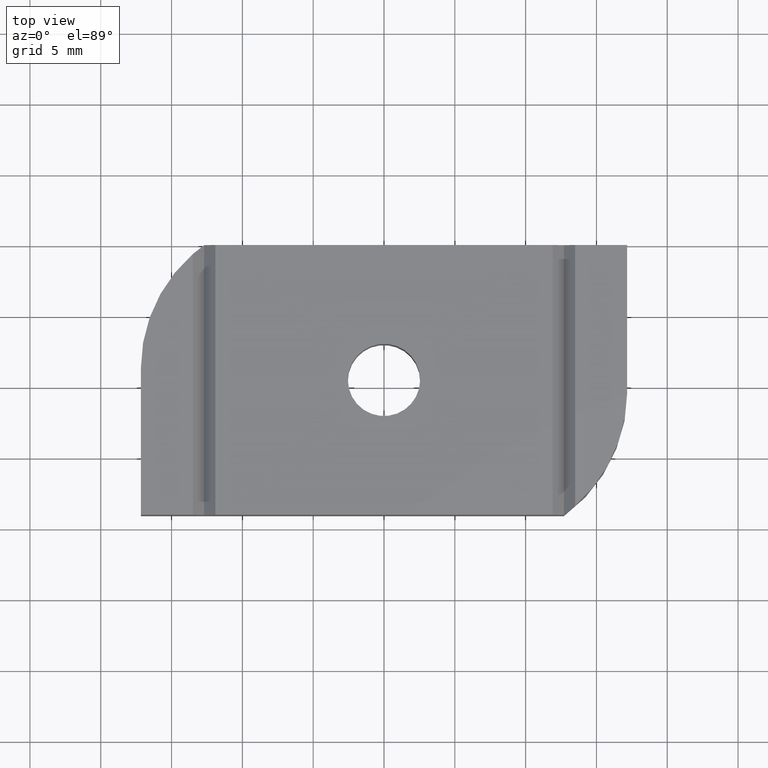
[diagram: clean part render]
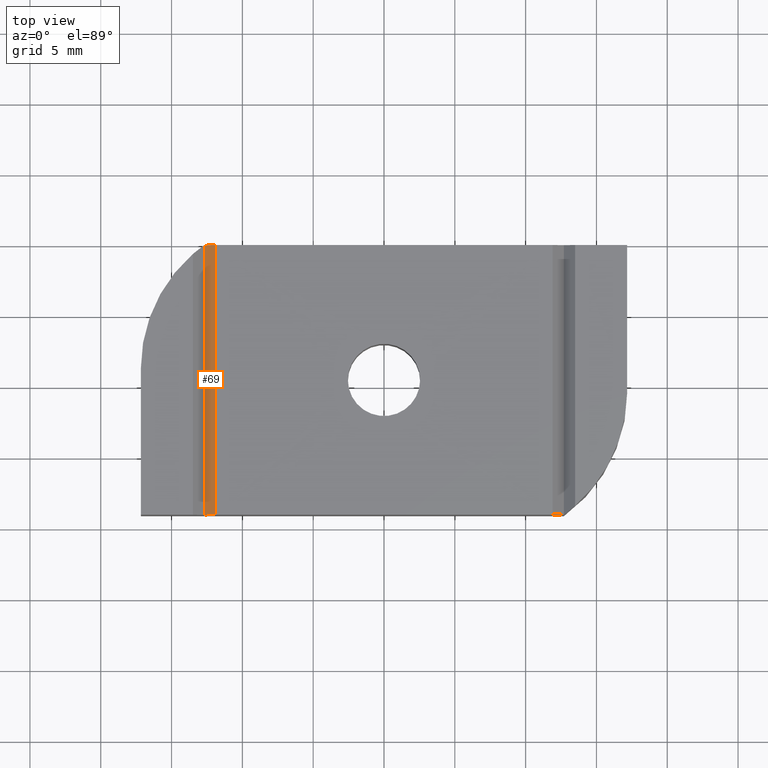
[diagram: same view with one face highlighted and labeled with its STEP entity id]
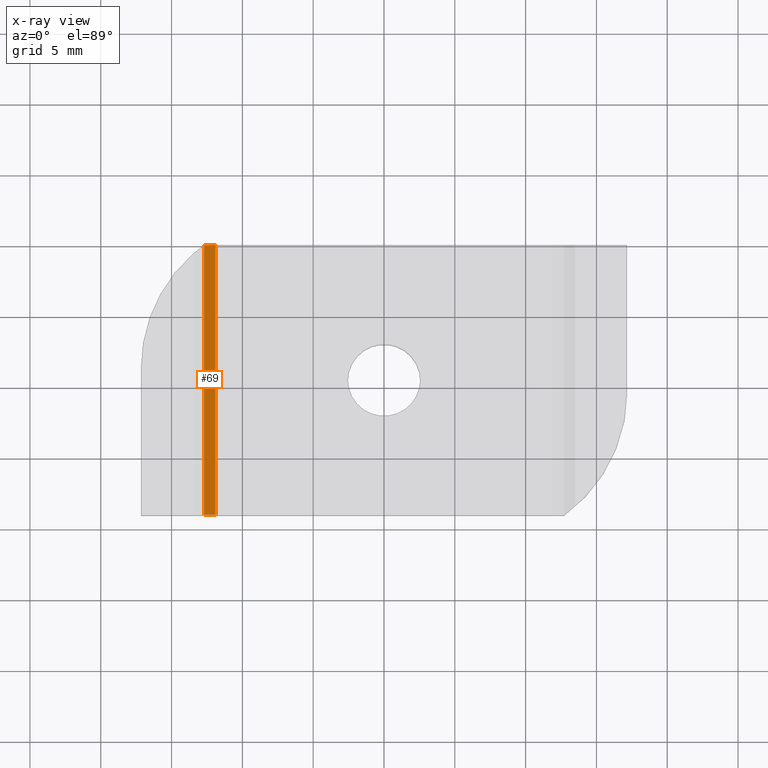
[diagram: x-ray of the same camera — body ghosted, the highlighted face saturated]
A machine part, top view. The second image highlights one B-rep face of the part: STEP entity #69.
The next image is the same camera in x-ray: the body ghosted, the highlighted face saturated — about 0% of this face is hidden behind the body in this view.
In plain terms, the highlighted planar face has unit normal (0.7071, 0, -0.7071).
Its self-contained STEP definition (entity closure, byte-faithful):
#42 = ORIENTED_EDGE ( 'NONE', *, *, #89, .T. ) ;
#69 = ADVANCED_FACE ( 'NONE', ( #1165 ), #2589, .F. ) ;
#89 = EDGE_CURVE ( 'NONE', #2580, #2551, #250, .T. ) ;
#112 = AXIS2_PLACEMENT_3D ( 'NONE', #2567, #2566, #2553 ) ;
#133 = EDGE_CURVE ( 'NONE', #2601, #2580, #2004, .T. ) ;
#213 = LINE ( 'NONE', #1102, #214 ) ;
#214 = VECTOR ( 'NONE', #1103, 39.37007874015748900 ) ;
#225 = LINE ( 'NONE', #1120, #226 ) ;
#226 = VECTOR ( 'NONE', #1121, 39.37007874015748100 ) ;
#250 = LINE ( 'NONE', #675, #254 ) ;
#254 = VECTOR ( 'NONE', #676, 39.37007874015748900 ) ;
#675 = CARTESIAN_POINT ( 'NONE',  ( -0.5000000000000000000, -0.3750000000000000600, 0.08774999999999996700 ) ) ;
#676 = DIRECTION ( 'NONE',  ( 0.7071067811865476800, 0.0000000000000000000, 0.7071067811865472400 ) ) ;
#1029 = CARTESIAN_POINT ( 'NONE',  ( -0.5000000000000000000, 0.3750000000000000600, 0.08774999999999996700 ) ) ;
#1034 = DIRECTION ( 'NONE',  ( -0.0000000000000000000, -1.000000000000000000, -0.0000000000000000000 ) ) ;
#1059 = CARTESIAN_POINT ( 'NONE',  ( -0.4687499999999999400, -0.3750000000000000600, 0.1189999999999999900 ) ) ;
#1070 = CARTESIAN_POINT ( 'NONE',  ( -0.4687499999999999400, 0.3750000000000000600, 0.1189999999999999900 ) ) ;
#1079 = CARTESIAN_POINT ( 'NONE',  ( -0.5000000000000000000, -0.3750000000000000600, 0.08774999999999996700 ) ) ;
#1094 = CARTESIAN_POINT ( 'NONE',  ( -0.5000000000000000000, 0.3750000000000000600, 0.08774999999999996700 ) ) ;
#1102 = CARTESIAN_POINT ( 'NONE',  ( -0.5000000000000000000, 0.3750000000000000600, 0.08774999999999996700 ) ) ;
#1103 = DIRECTION ( 'NONE',  ( 0.7071067811865476800, 0.0000000000000000000, 0.7071067811865472400 ) ) ;
#1120 = CARTESIAN_POINT ( 'NONE',  ( -0.4687499999999999400, 0.3750000000000000600, 0.1189999999999999900 ) ) ;
#1121 = DIRECTION ( 'NONE',  ( -0.0000000000000000000, -1.000000000000000000, -0.0000000000000000000 ) ) ;
#1165 = FACE_OUTER_BOUND ( 'NONE', #2042, .T. ) ;
#2004 = LINE ( 'NONE', #1029, #2011 ) ;
#2011 = VECTOR ( 'NONE', #1034, 39.37007874015748100 ) ;
#2042 = EDGE_LOOP ( 'NONE', ( #42, #2050, #2053, #2049 ) ) ;
#2049 = ORIENTED_EDGE ( 'NONE', *, *, #133, .T. ) ;
#2050 = ORIENTED_EDGE ( 'NONE', *, *, #2659, .F. ) ;
#2053 = ORIENTED_EDGE ( 'NONE', *, *, #2651, .F. ) ;
#2550 = VERTEX_POINT ( 'NONE', #1070 ) ;
#2551 = VERTEX_POINT ( 'NONE', #1059 ) ;
#2553 = DIRECTION ( 'NONE',  ( -0.7071067811865476800, 0.0000000000000000000, -0.7071067811865472400 ) ) ;
#2566 = DIRECTION ( 'NONE',  ( 0.7071067811865473500, 0.0000000000000000000, -0.7071067811865477900 ) ) ;
#2567 = CARTESIAN_POINT ( 'NONE',  ( -0.5000000000000000000, 0.3750000000000000600, 0.08774999999999996700 ) ) ;
#2580 = VERTEX_POINT ( 'NONE', #1079 ) ;
#2589 = PLANE ( 'NONE',  #112 ) ;
#2601 = VERTEX_POINT ( 'NONE', #1094 ) ;
#2651 = EDGE_CURVE ( 'NONE', #2601, #2550, #213, .T. ) ;
#2659 = EDGE_CURVE ( 'NONE', #2550, #2551, #225, .T. ) ;